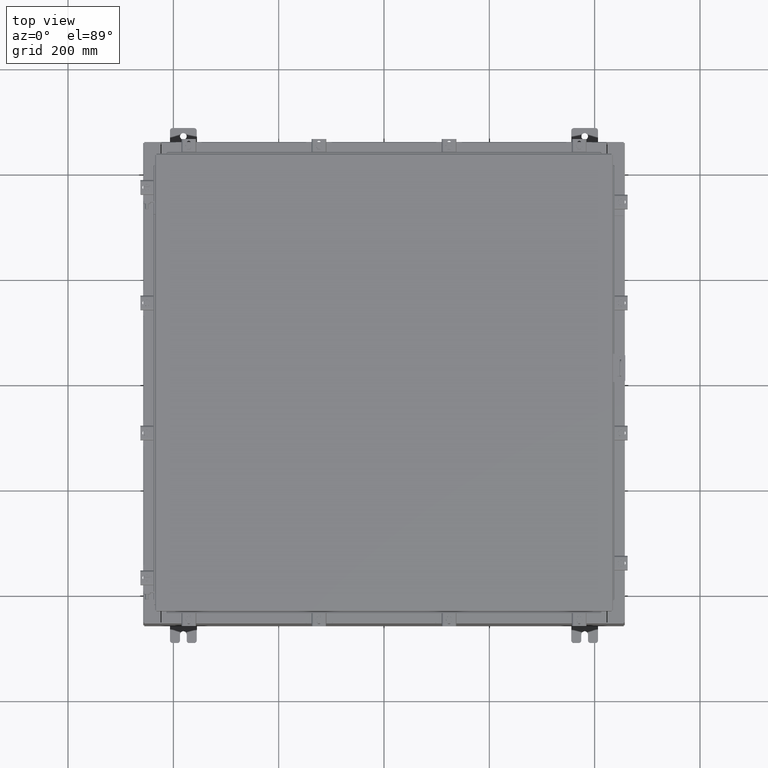
[diagram: clean part render]
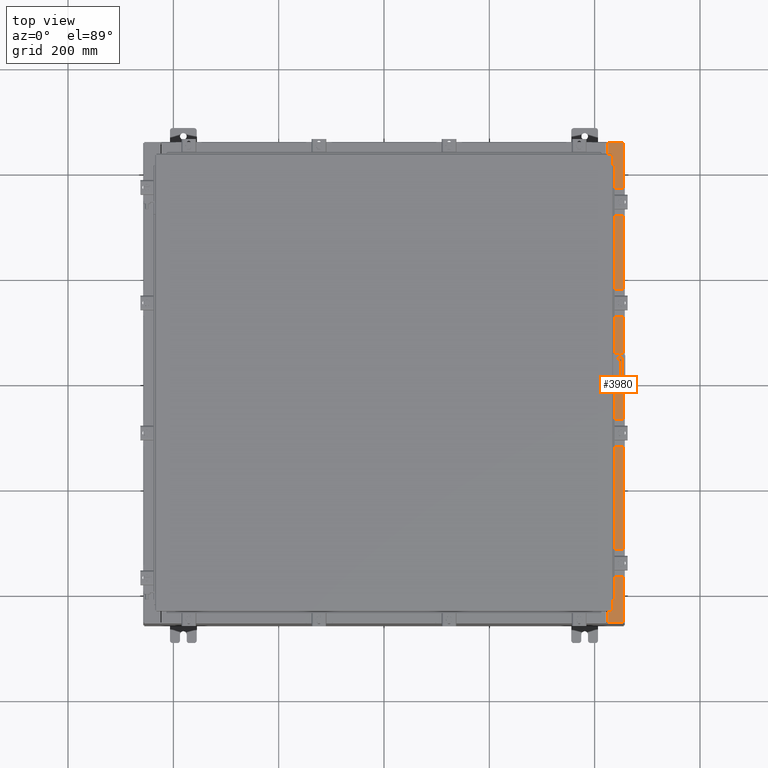
[diagram: same view with one face highlighted and labeled with its STEP entity id]
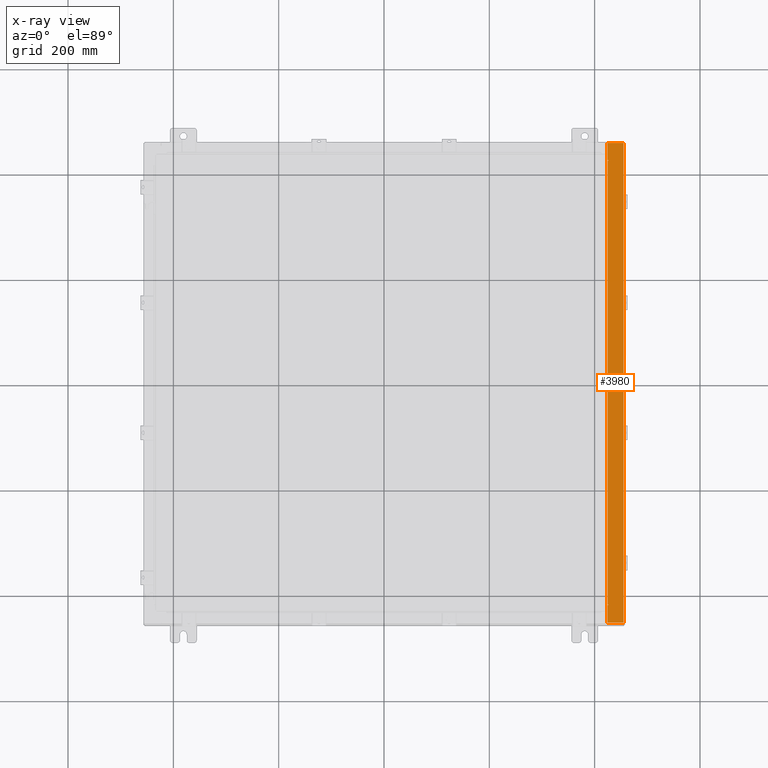
[diagram: x-ray of the same camera — body ghosted, the highlighted face saturated]
A machine part, top view. The second image highlights one B-rep face of the part: STEP entity #3980.
The next image is the same camera in x-ray: the body ghosted, the highlighted face saturated — about 0% of this face is hidden behind the body in this view.
In plain terms, the highlighted planar face has unit normal (-0, 0, -1).
Its self-contained STEP definition (entity closure, byte-faithful):
#130 = CARTESIAN_POINT ( 'NONE',  ( 16.75005000000004100, -16.63110000000000000, 11.92530000000000900 ) ) ;
#310 = VERTEX_POINT ( 'NONE', #3871 ) ;
#323 = VECTOR ( 'NONE', #1297, 39.37007874015748100 ) ;
#546 = CARTESIAN_POINT ( 'NONE',  ( 16.69970000000004300, -16.63110000000000400, 11.92530000000000900 ) ) ;
#621 = VECTOR ( 'NONE', #20151, 39.37007874015748100 ) ;
#644 = EDGE_CURVE ( 'NONE', #21417, #26263, #5970, .T. ) ;
#773 = CARTESIAN_POINT ( 'NONE',  ( 16.75005000000004100, 16.63110000000000000, 11.92530000000000900 ) ) ;
#961 = LINE ( 'NONE', #24398, #323 ) ;
#1202 = EDGE_CURVE ( 'NONE', #21417, #310, #11472, .T. ) ;
#1223 = VECTOR ( 'NONE', #13247, 39.37007874015748100 ) ;
#1297 = DIRECTION ( 'NONE',  ( -0.0000000000000000000, -1.000000000000000000, -0.0000000000000000000 ) ) ;
#1342 = VECTOR ( 'NONE', #17243, 39.37007874015748100 ) ;
#1688 = VECTOR ( 'NONE', #7654, 39.37007874015748100 ) ;
#1823 = PLANE ( 'NONE',  #20265 ) ;
#1838 = ORIENTED_EDGE ( 'NONE', *, *, #644, .F. ) ;
#1997 = LINE ( 'NONE', #8900, #1342 ) ;
#2234 = ORIENTED_EDGE ( 'NONE', *, *, #20117, .F. ) ;
#2336 = LINE ( 'NONE', #13948, #1688 ) ;
#2400 = ORIENTED_EDGE ( 'NONE', *, *, #17266, .F. ) ;
#2831 = CARTESIAN_POINT ( 'NONE',  ( 8.532114493236880700E-014, 0.0000000000000000000, 11.92530000000013000 ) ) ;
#3050 = DIRECTION ( 'NONE',  ( -7.132762385546384700E-015, 0.0000000000000000000, -1.000000000000000000 ) ) ;
#3067 = DIRECTION ( 'NONE',  ( 7.132762385546384700E-015, 0.0000000000000000000, 1.000000000000000000 ) ) ;
#3108 = VERTEX_POINT ( 'NONE', #20382 ) ;
#3373 = ORIENTED_EDGE ( 'NONE', *, *, #26008, .T. ) ;
#3542 = ORIENTED_EDGE ( 'NONE', *, *, #16384, .F. ) ;
#3871 = CARTESIAN_POINT ( 'NONE',  ( 16.69970000000004300, -17.92530000000000000, 11.92530000000000900 ) ) ;
#3980 = ADVANCED_FACE ( 'NONE', ( #21940 ), #1823, .F. ) ;
#4293 = DIRECTION ( 'NONE',  ( 0.0000000000000000000, -1.000000000000000000, 0.0000000000000000000 ) ) ;
#4766 = DIRECTION ( 'NONE',  ( -1.000000000000000000, 0.0000000000000000000, 7.132762385546384700E-015 ) ) ;
#5160 = DIRECTION ( 'NONE',  ( 0.0000000000000000000, -1.000000000000000000, 0.0000000000000000000 ) ) ;
#5786 = DIRECTION ( 'NONE',  ( 1.000000000000000000, 0.0000000000000000000, -7.132762385546384700E-015 ) ) ;
#5970 = LINE ( 'NONE', #546, #15781 ) ;
#6093 = LINE ( 'NONE', #18012, #621 ) ;
#6685 = LINE ( 'NONE', #19519, #1223 ) ;
#7095 = AXIS2_PLACEMENT_3D ( 'NONE', #15544, #3067, #17654 ) ;
#7101 = DIRECTION ( 'NONE',  ( 7.132762385546384700E-015, 0.0000000000000000000, 1.000000000000000000 ) ) ;
#7654 = DIRECTION ( 'NONE',  ( -1.000000000000000000, 4.340572780400098900E-014, -4.340572780400098900E-014 ) ) ;
#7699 = VECTOR ( 'NONE', #27058, 39.37007874015748100 ) ;
#7783 = CIRCLE ( 'NONE', #10627, 0.01867499999999949400 ) ;
#8355 = DIRECTION ( 'NONE',  ( 1.000000000000000000, 4.340572780400098900E-014, 4.340572780400098900E-014 ) ) ;
#8391 = ORIENTED_EDGE ( 'NONE', *, *, #1202, .T. ) ;
#8461 = VERTEX_POINT ( 'NONE', #12714 ) ;
#8900 = CARTESIAN_POINT ( 'NONE',  ( 8.532114493236880700E-014, 17.92530000000000000, 11.92530000000013000 ) ) ;
#9059 = ORIENTED_EDGE ( 'NONE', *, *, #20481, .T. ) ;
#9286 = LINE ( 'NONE', #14082, #19123 ) ;
#10299 = VERTEX_POINT ( 'NONE', #11076 ) ;
#10627 = AXIS2_PLACEMENT_3D ( 'NONE', #19644, #7101, #21822 ) ;
#10785 = VECTOR ( 'NONE', #4293, 39.37007874015748100 ) ;
#11030 = EDGE_LOOP ( 'NONE', ( #1838, #8391, #3373, #15518, #15419, #9059, #20116, #2234, #2400, #3542, #26767, #11285 ) ) ;
#11076 = CARTESIAN_POINT ( 'NONE',  ( 16.69970000000004300, 16.63110000000000000, 11.92530000000000900 ) ) ;
#11285 = ORIENTED_EDGE ( 'NONE', *, *, #14773, .F. ) ;
#11462 = CARTESIAN_POINT ( 'NONE',  ( 16.71270000000004400, 16.59375000000000000, 11.92530000000001200 ) ) ;
#11472 = LINE ( 'NONE', #23612, #16395 ) ;
#12232 = CARTESIAN_POINT ( 'NONE',  ( 16.75005000000004100, -16.59375000000000000, 11.92530000000000900 ) ) ;
#12559 = CARTESIAN_POINT ( 'NONE',  ( 16.69970000000004300, 0.0000000000000000000, 11.92530000000000900 ) ) ;
#12679 = CARTESIAN_POINT ( 'NONE',  ( 16.75005000000004100, 16.59375000000000000, 11.92530000000000900 ) ) ;
#12714 = CARTESIAN_POINT ( 'NONE',  ( 16.71270000000004400, -16.59375000000000000, 11.92530000000001200 ) ) ;
#12939 = VERTEX_POINT ( 'NONE', #12232 ) ;
#13237 = LINE ( 'NONE', #24923, #7699 ) ;
#13247 = DIRECTION ( 'NONE',  ( 1.000000000000000000, 0.0000000000000000000, 0.0000000000000000000 ) ) ;
#13368 = CARTESIAN_POINT ( 'NONE',  ( 17.91230000000004100, -17.92530000000000000, 11.92530000000000400 ) ) ;
#13948 = CARTESIAN_POINT ( 'NONE',  ( 16.75005000000004100, 16.63110000000000000, 11.92530000000001200 ) ) ;
#14082 = CARTESIAN_POINT ( 'NONE',  ( 8.532114493236880700E-014, -17.92530000000000000, 11.92530000000013000 ) ) ;
#14362 = VERTEX_POINT ( 'NONE', #17639 ) ;
#14384 = CIRCLE ( 'NONE', #7095, 0.01867499999999949400 ) ;
#14773 = EDGE_CURVE ( 'NONE', #26263, #12939, #7783, .T. ) ;
#15419 = ORIENTED_EDGE ( 'NONE', *, *, #23338, .T. ) ;
#15482 = CARTESIAN_POINT ( 'NONE',  ( 16.69970000000004300, -16.63110000000000400, 11.92530000000000900 ) ) ;
#15518 = ORIENTED_EDGE ( 'NONE', *, *, #24224, .F. ) ;
#15544 = CARTESIAN_POINT ( 'NONE',  ( 16.75005000000004100, 16.61242500000000200, 11.92530000000001200 ) ) ;
#15781 = VECTOR ( 'NONE', #8355, 39.37007874015748100 ) ;
#16223 = EDGE_CURVE ( 'NONE', #12939, #8461, #6093, .T. ) ;
#16346 = LINE ( 'NONE', #12559, #10785 ) ;
#16384 = EDGE_CURVE ( 'NONE', #8461, #16761, #13237, .T. ) ;
#16395 = VECTOR ( 'NONE', #5160, 39.37007874015748100 ) ;
#16761 = VERTEX_POINT ( 'NONE', #11462 ) ;
#17243 = DIRECTION ( 'NONE',  ( -1.000000000000000000, 0.0000000000000000000, 7.132762385546384700E-015 ) ) ;
#17266 = EDGE_CURVE ( 'NONE', #16761, #17854, #6685, .T. ) ;
#17639 = CARTESIAN_POINT ( 'NONE',  ( 16.69970000000004300, 17.92530000000000000, 11.92530000000000900 ) ) ;
#17654 = DIRECTION ( 'NONE',  ( 1.000000000000000000, 0.0000000000000000000, 0.0000000000000000000 ) ) ;
#17854 = VERTEX_POINT ( 'NONE', #12679 ) ;
#18012 = CARTESIAN_POINT ( 'NONE',  ( 16.75005000000004100, -16.59375000000000000, 11.92530000000001200 ) ) ;
#19123 = VECTOR ( 'NONE', #5786, 39.37007874015748100 ) ;
#19519 = CARTESIAN_POINT ( 'NONE',  ( 16.71270000000004400, 16.59375000000000000, 11.92530000000001200 ) ) ;
#19644 = CARTESIAN_POINT ( 'NONE',  ( 16.75005000000004100, -16.61242500000000200, 11.92530000000001200 ) ) ;
#20116 = ORIENTED_EDGE ( 'NONE', *, *, #23021, .F. ) ;
#20117 = EDGE_CURVE ( 'NONE', #17854, #25664, #14384, .T. ) ;
#20151 = DIRECTION ( 'NONE',  ( -1.000000000000000000, 0.0000000000000000000, 0.0000000000000000000 ) ) ;
#20265 = AXIS2_PLACEMENT_3D ( 'NONE', #2831, #3050, #4766 ) ;
#20382 = CARTESIAN_POINT ( 'NONE',  ( 17.91230000000004100, 17.92530000000000000, 11.92530000000000400 ) ) ;
#20481 = EDGE_CURVE ( 'NONE', #14362, #10299, #16346, .T. ) ;
#21417 = VERTEX_POINT ( 'NONE', #15482 ) ;
#21822 = DIRECTION ( 'NONE',  ( 1.000000000000000000, 0.0000000000000000000, 0.0000000000000000000 ) ) ;
#21940 = FACE_OUTER_BOUND ( 'NONE', #11030, .T. ) ;
#23021 = EDGE_CURVE ( 'NONE', #25664, #10299, #2336, .T. ) ;
#23338 = EDGE_CURVE ( 'NONE', #3108, #14362, #1997, .T. ) ;
#23612 = CARTESIAN_POINT ( 'NONE',  ( 16.69970000000004300, 0.0000000000000000000, 11.92530000000000900 ) ) ;
#24224 = EDGE_CURVE ( 'NONE', #3108, #25278, #961, .T. ) ;
#24398 = CARTESIAN_POINT ( 'NONE',  ( 17.91230000000004100, -17.92530000000000000, 11.92530000000000400 ) ) ;
#24923 = CARTESIAN_POINT ( 'NONE',  ( 16.71270000000004400, -16.59375000000000000, 11.92530000000001200 ) ) ;
#25278 = VERTEX_POINT ( 'NONE', #13368 ) ;
#25664 = VERTEX_POINT ( 'NONE', #773 ) ;
#26008 = EDGE_CURVE ( 'NONE', #310, #25278, #9286, .T. ) ;
#26263 = VERTEX_POINT ( 'NONE', #130 ) ;
#26767 = ORIENTED_EDGE ( 'NONE', *, *, #16223, .F. ) ;
#27058 = DIRECTION ( 'NONE',  ( -0.0000000000000000000, 1.000000000000000000, -0.0000000000000000000 ) ) ;